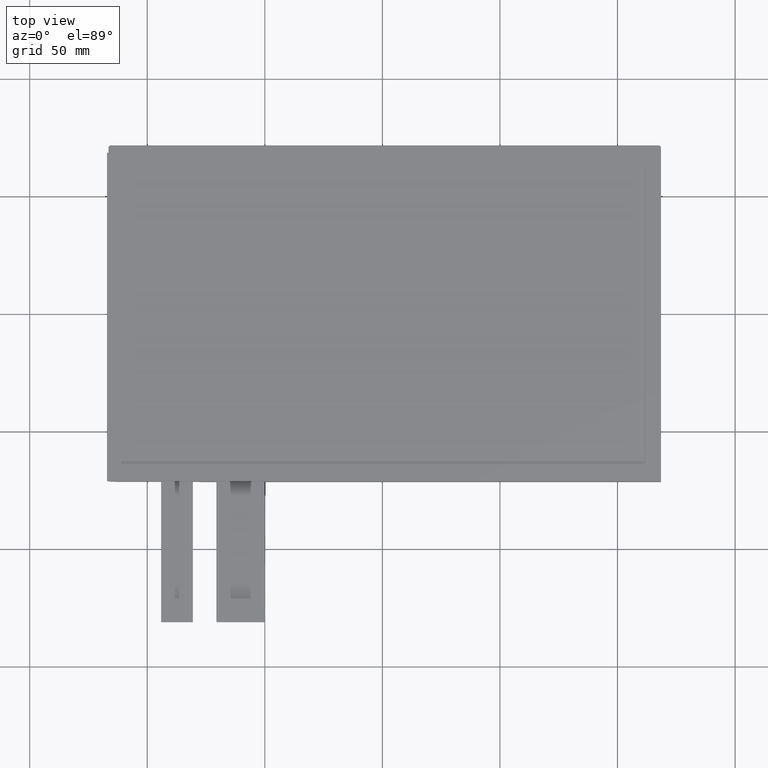
[diagram: clean part render]
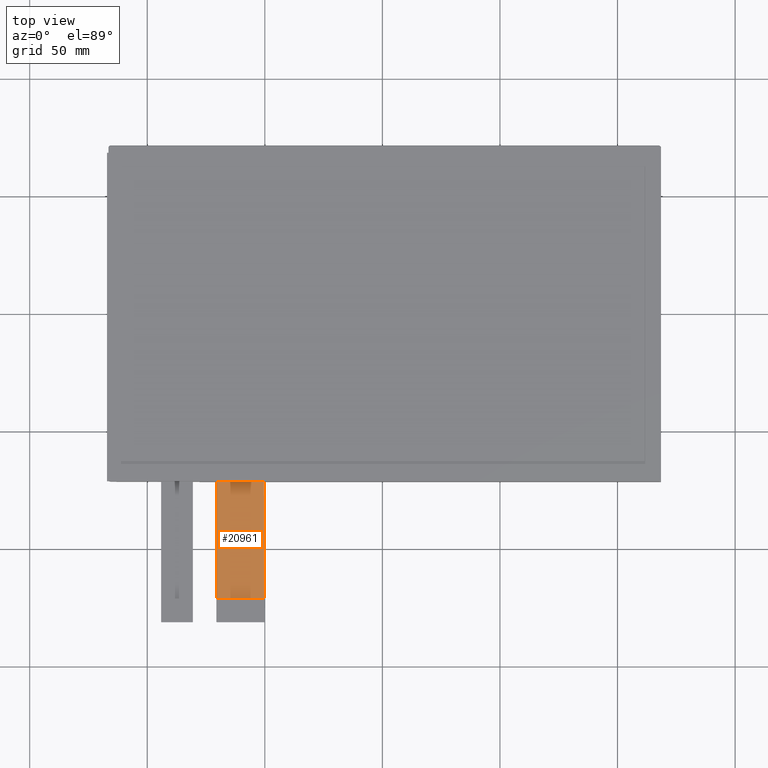
[diagram: same view with one face highlighted and labeled with its STEP entity id]
A machine part, top view. The second image highlights one B-rep face of the part: STEP entity #20961.
In plain terms, the highlighted planar face has unit normal (-0, 0, 1).
Its self-contained STEP definition (entity closure, byte-faithful):
#800=FACE_OUTER_BOUND('',#1892,.T.);
#1892=EDGE_LOOP('',(#15404,#15405,#15406,#15407));
#3674=LINE('',#30487,#6508);
#3677=LINE('',#30493,#6511);
#3685=LINE('',#30509,#6519);
#3688=LINE('',#30514,#6522);
#6508=VECTOR('',#24676,10.);
#6511=VECTOR('',#24681,10.);
#6519=VECTOR('',#24697,10.);
#6522=VECTOR('',#24702,10.);
#9051=VERTEX_POINT('',#30484);
#9052=VERTEX_POINT('',#30486);
#9054=VERTEX_POINT('',#30492);
#9058=VERTEX_POINT('',#30508);
#11394=EDGE_CURVE('',#9052,#9051,#3674,.T.);
#11397=EDGE_CURVE('',#9054,#9052,#3677,.T.);
#11405=EDGE_CURVE('',#9058,#9054,#3685,.T.);
#11408=EDGE_CURVE('',#9058,#9051,#3688,.T.);
#15404=ORIENTED_EDGE('',*,*,#11397,.T.);
#15405=ORIENTED_EDGE('',*,*,#11394,.T.);
#15406=ORIENTED_EDGE('',*,*,#11408,.F.);
#15407=ORIENTED_EDGE('',*,*,#11405,.T.);
#19990=PLANE('',#22089);
#20961=ADVANCED_FACE('',(#800),#19990,.T.);
#22089=AXIS2_PLACEMENT_3D('',#30513,#24700,#24701);
#24676=DIRECTION('',(9.42572967314663E-16,1.,3.26371513558992E-81));
#24681=DIRECTION('',(1.,-4.984837574646E-16,3.46255966250344E-66));
#24697=DIRECTION('',(-2.02424284231225E-16,-1.,-7.00906161290169E-82));
#24700=DIRECTION('center_axis',(-3.46255966250344E-66,0.,1.));
#24701=DIRECTION('ref_axis',(1.,-4.984837574646E-16,3.46255966250344E-66));
#24702=DIRECTION('',(1.,-3.4717567915112E-16,3.46255966250344E-66));
#30484=CARTESIAN_POINT('',(-50.1099999999999,-71.18,-1.1));
#30486=CARTESIAN_POINT('',(-50.1100000000001,-121.18,-1.1));
#30487=CARTESIAN_POINT('',(-50.1100000000001,-131.18,-1.1));
#30492=CARTESIAN_POINT('',(-70.6100000000001,-121.18,-1.1));
#30493=CARTESIAN_POINT('',(-55.2350000000001,-121.18,-1.1));
#30508=CARTESIAN_POINT('',(-70.61,-71.18,-1.1));
#30509=CARTESIAN_POINT('',(-70.61,-71.18,-1.1));
#30513=CARTESIAN_POINT('Origin',(-60.3600000000001,-101.18,-1.1));
#30514=CARTESIAN_POINT('',(28.655,-71.18,-1.1));